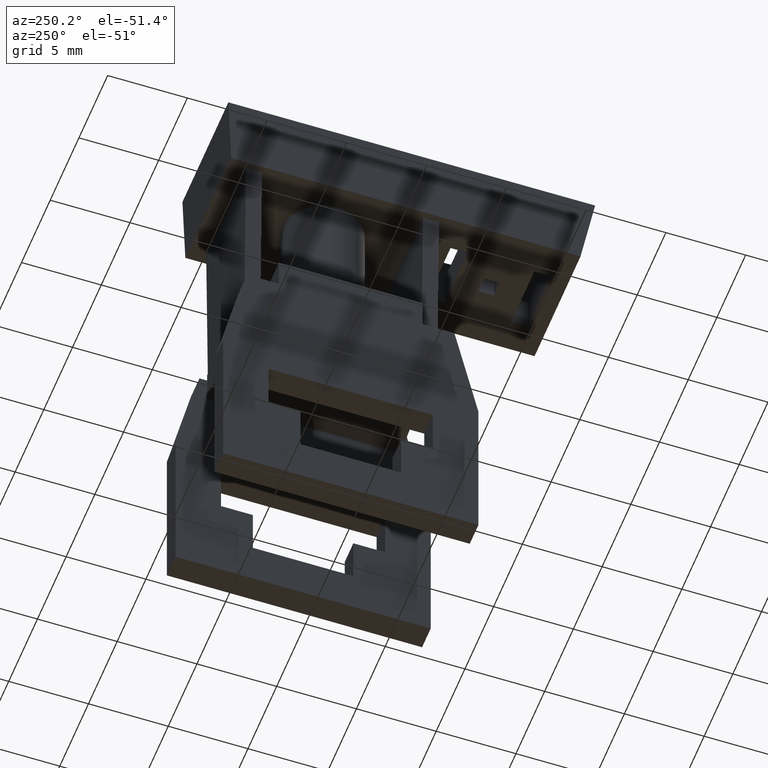
[diagram: clean part render]
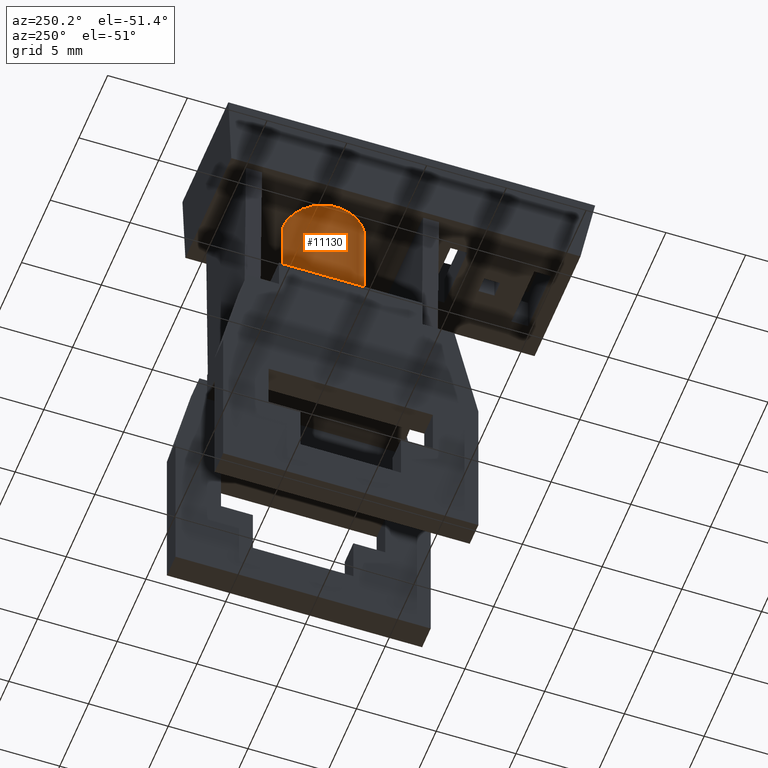
[diagram: same view with one face highlighted and labeled with its STEP entity id]
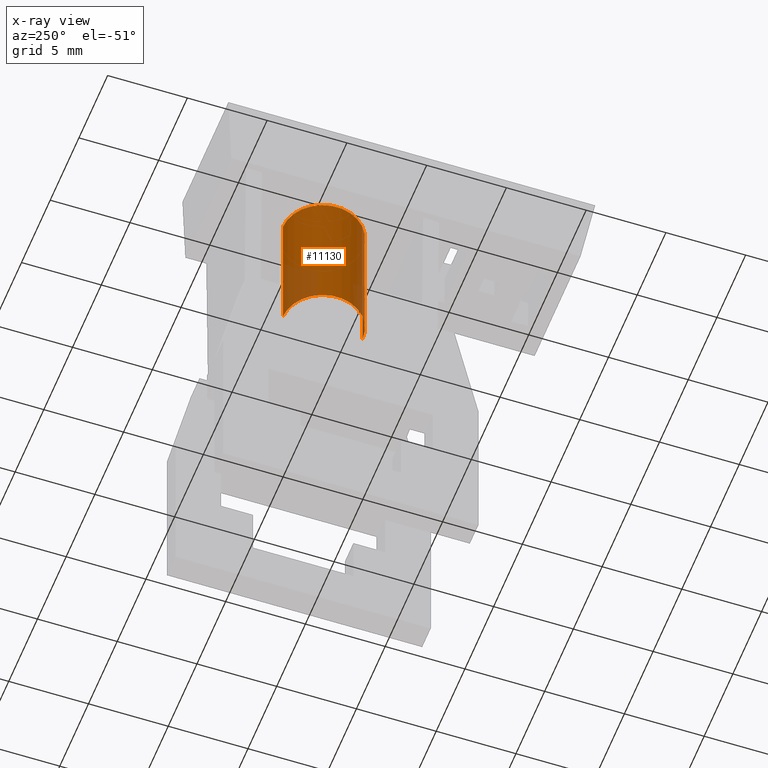
[diagram: x-ray of the same camera — body ghosted, the highlighted face saturated]
A machine part, auxiliary view. The second image highlights one B-rep face of the part: STEP entity #11130.
The next image is the same camera in x-ray: the body ghosted, the highlighted face saturated — about 20% of this face is hidden behind the body in this view.
In plain terms, the highlighted cylindrical surface (partial cylindrical patch) has radius 2.5 mm, axis along (0, 0, -1).
Its self-contained STEP definition (entity closure, byte-faithful):
#10140=CARTESIAN_POINT('',(-4.90000000000001,29.4999997566941,
8.00000000000001));
#10150=DIRECTION('',(0.,-1.,0.));
#10160=DIRECTION('',(-6.12323399573677E-17,0.,-1.));
#10170=AXIS2_PLACEMENT_3D('',#10140,#10150,#10160);
#10180=CIRCLE('',#10170,2.5);
#10190=CARTESIAN_POINT('',(-4.90000000000001,29.4999997566941,
5.50000000000001));
#10200=VERTEX_POINT('',#10190);
#10210=CARTESIAN_POINT('',(-4.90000000000001,29.4999997566941,10.5));
#10220=VERTEX_POINT('',#10210);
#10250=EDGE_CURVE('',#10220,#10200,#10180,.T.);
#10820=CARTESIAN_POINT('',(-4.90000000000001,17.15,8.00000000000001));
#10830=DIRECTION('',(0.,-1.,0.));
#10840=DIRECTION('',(-6.12323399573677E-17,0.,-1.));
#10850=AXIS2_PLACEMENT_3D('',#10820,#10830,#10840);
#10860=CYLINDRICAL_SURFACE('',#10850,2.5);
#10870=CARTESIAN_POINT('',(-4.90000000000001,17.15,10.5));
#10880=DIRECTION('',(0.,-1.,0.));
#10890=VECTOR('',#10880,1.);
#10900=LINE('',#10870,#10890);
#10910=CARTESIAN_POINT('',(-4.90000000000001,21.,10.5));
#10920=VERTEX_POINT('',#10910);
#10930=EDGE_CURVE('',#10220,#10920,#10900,.T.);
#10940=ORIENTED_EDGE('',*,*,#10930,.F.);
#10950=CARTESIAN_POINT('',(-4.90000000000001,21.,8.00000000000001));
#10960=DIRECTION('',(0.,-1.,0.));
#10970=DIRECTION('',(-6.12323399573677E-17,0.,-1.));
#10980=AXIS2_PLACEMENT_3D('',#10950,#10960,#10970);
#10990=CIRCLE('',#10980,2.5);
#11000=CARTESIAN_POINT('',(-4.90000000000001,21.,5.50000000000001));
#11010=VERTEX_POINT('',#11000);
#11020=EDGE_CURVE('',#10920,#11010,#10990,.T.);
#11030=ORIENTED_EDGE('',*,*,#11020,.F.);
#11040=CARTESIAN_POINT('',(-4.90000000000001,17.15,5.50000000000001));
#11050=DIRECTION('',(0.,-1.,0.));
#11060=VECTOR('',#11050,1.);
#11070=LINE('',#11040,#11060);
#11080=EDGE_CURVE('',#10200,#11010,#11070,.T.);
#11090=ORIENTED_EDGE('',*,*,#11080,.T.);
#11100=ORIENTED_EDGE('',*,*,#10250,.T.);
#11110=EDGE_LOOP('',(#11100,#11090,#11030,#10940));
#11120=FACE_OUTER_BOUND('',#11110,.T.);
#11130=ADVANCED_FACE('',(#11120),#10860,.T.);